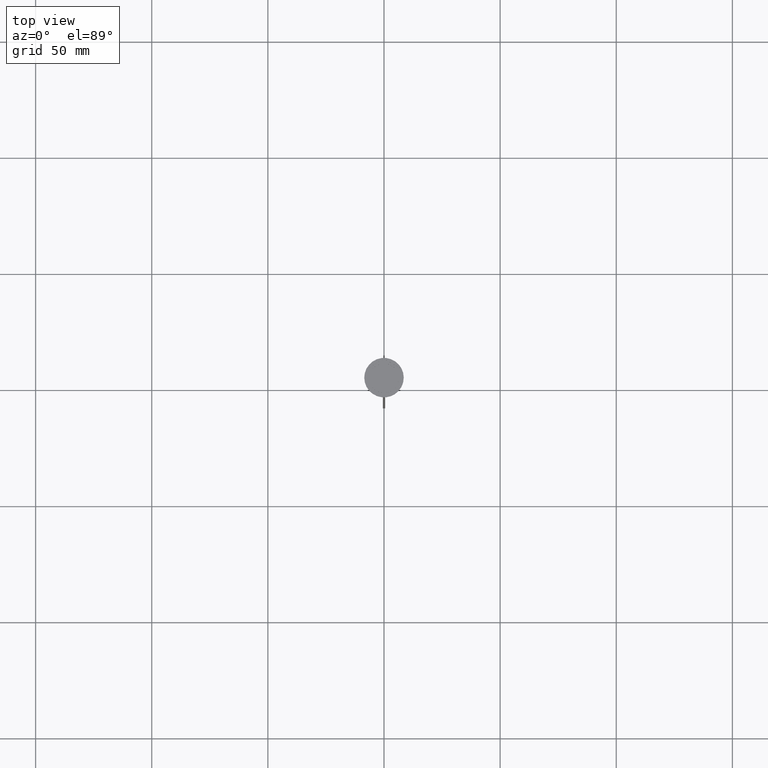
[diagram: clean part render]
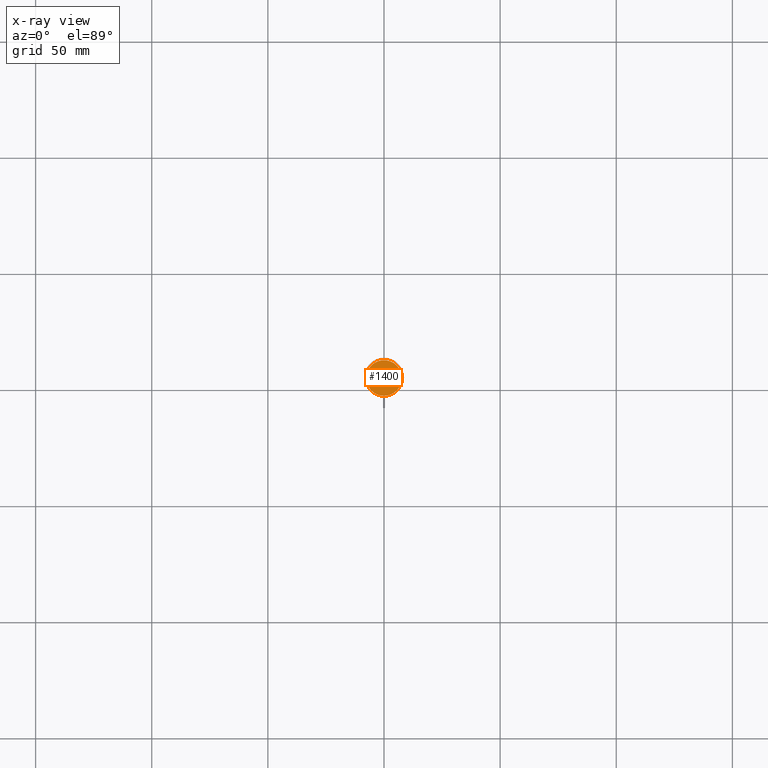
[diagram: x-ray — body ghosted, one internal face saturated and labeled with its STEP entity id]
A machine part, top view, then the same camera in x-ray: the body is ghosted and one INTERNAL B-rep face — a face not visible from any outside direction — is saturated and labeled: STEP entity #1400.
In plain terms, the highlighted planar face has unit normal (0, 0, -1).
Its self-contained STEP definition (entity closure, byte-faithful):
#130 = CARTESIAN_POINT ( 'NONE',  ( 0.000000000000000000, 0.000000000000000000, -12.00000000000000000 ) ) ;
#176 = EDGE_CURVE ( 'NONE', #1831, #1849, #2039, .T. ) ;
#208 = DIRECTION ( 'NONE',  ( -1.000000000000000000, 0.000000000000000000, -0.000000000000000000 ) ) ;
#232 = AXIS2_PLACEMENT_3D ( 'NONE', #2342, #1312, #208 ) ;
#501 = EDGE_CURVE ( 'NONE', #1849, #1831, #1926, .T. ) ;
#728 = DIRECTION ( 'NONE',  ( -0.000000000000000000, -0.000000000000000000, 1.000000000000000000 ) ) ;
#823 = FACE_OUTER_BOUND ( 'NONE', #1203, .T. ) ;
#873 = CARTESIAN_POINT ( 'NONE',  ( 7.700000000000001954, 9.613477373306725302E-16, -12.00000000000000000 ) ) ;
#948 = DIRECTION ( 'NONE',  ( -0.000000000000000000, -0.000000000000000000, 1.000000000000000000 ) ) ;
#989 = AXIS2_PLACEMENT_3D ( 'NONE', #1132, #948, #2159 ) ;
#1100 = DIRECTION ( 'NONE',  ( -1.000000000000000000, 0.000000000000000000, 0.000000000000000000 ) ) ;
#1132 = CARTESIAN_POINT ( 'NONE',  ( 0.000000000000000000, 0.000000000000000000, -12.00000000000000000 ) ) ;
#1203 = EDGE_LOOP ( 'NONE', ( #1890, #1991 ) ) ;
#1235 = CARTESIAN_POINT ( 'NONE',  ( -7.700000000000001954, 0.000000000000000000, -12.00000000000000000 ) ) ;
#1312 = DIRECTION ( 'NONE',  ( 0.000000000000000000, 0.000000000000000000, -1.000000000000000000 ) ) ;
#1388 = PLANE ( 'NONE',  #232 ) ;
#1400 = ADVANCED_FACE ( 'NONE', ( #823 ), #1388, .F. ) ;
#1831 = VERTEX_POINT ( 'NONE', #873 ) ;
#1849 = VERTEX_POINT ( 'NONE', #1235 ) ;
#1890 = ORIENTED_EDGE ( 'NONE', *, *, #501, .T. ) ;
#1926 = CIRCLE ( 'NONE', #2123, 7.700000000000001954 ) ;
#1991 = ORIENTED_EDGE ( 'NONE', *, *, #176, .T. ) ;
#2039 = CIRCLE ( 'NONE', #989, 7.700000000000001954 ) ;
#2123 = AXIS2_PLACEMENT_3D ( 'NONE', #130, #728, #1100 ) ;
#2159 = DIRECTION ( 'NONE',  ( -1.000000000000000000, 0.000000000000000000, 0.000000000000000000 ) ) ;
#2342 = CARTESIAN_POINT ( 'NONE',  ( 0.000000000000000000, 0.000000000000000000, -12.00000000000000000 ) ) ;